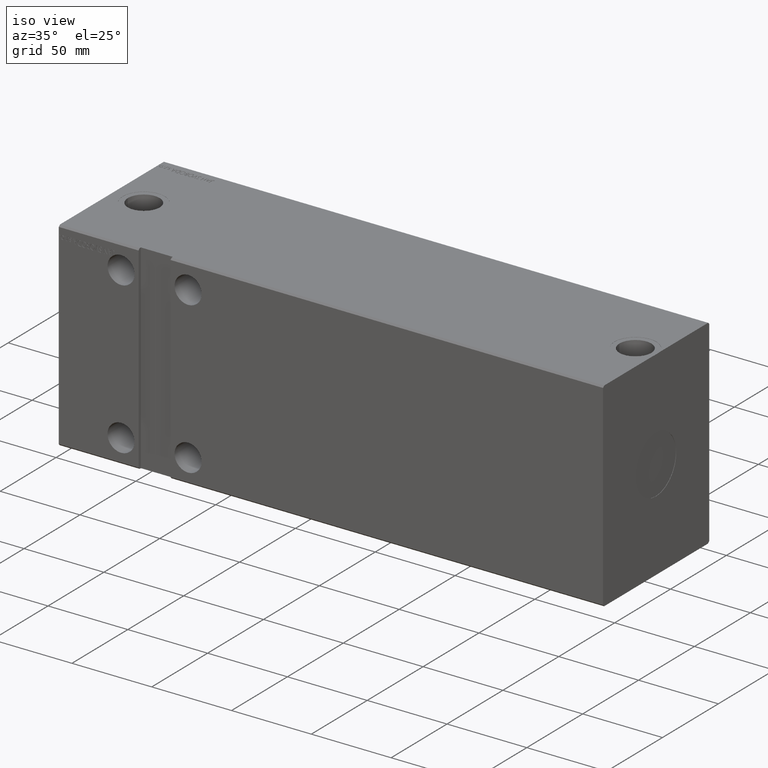
[diagram: clean part render]
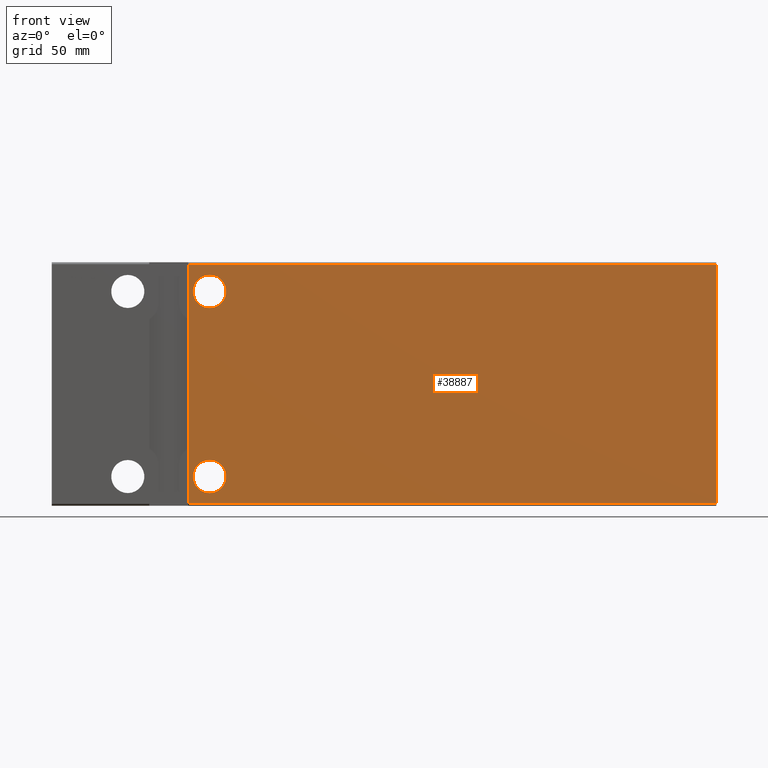
[diagram: tour spotlight — one face highlighted and labeled with its STEP entity id]
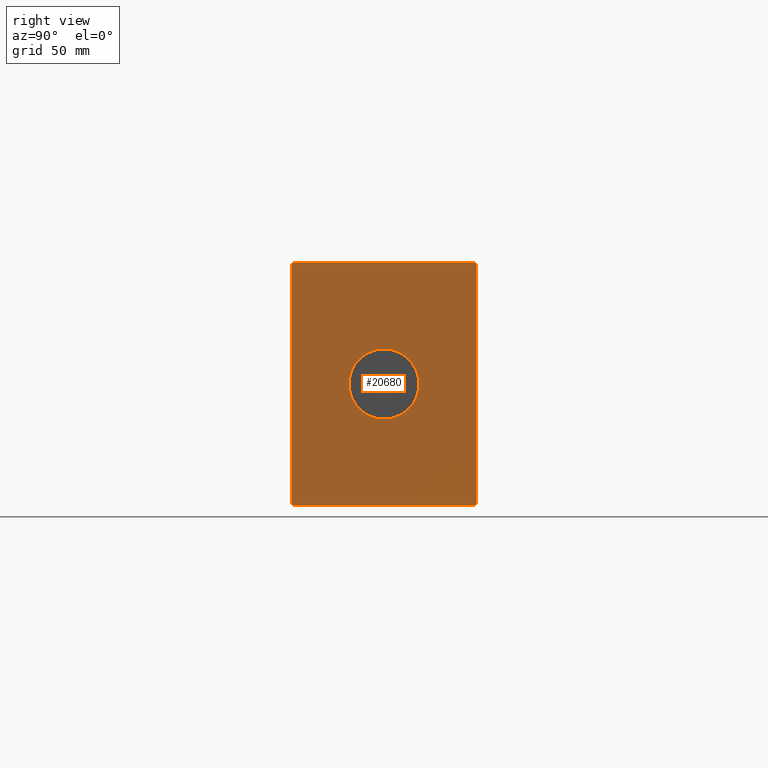
[diagram: tour spotlight — one face highlighted and labeled with its STEP entity id]
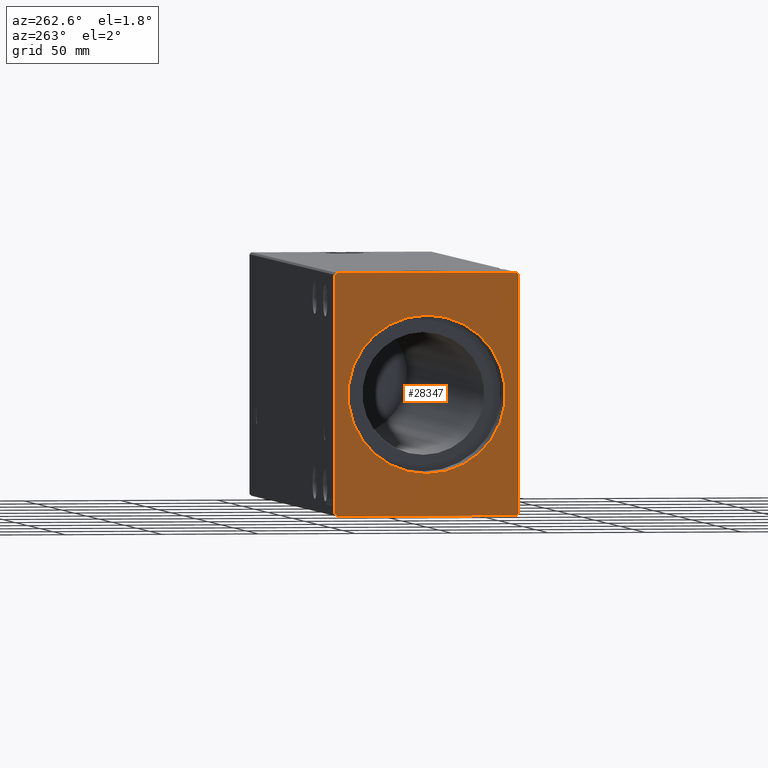
[diagram: tour spotlight — one face highlighted and labeled with its STEP entity id]
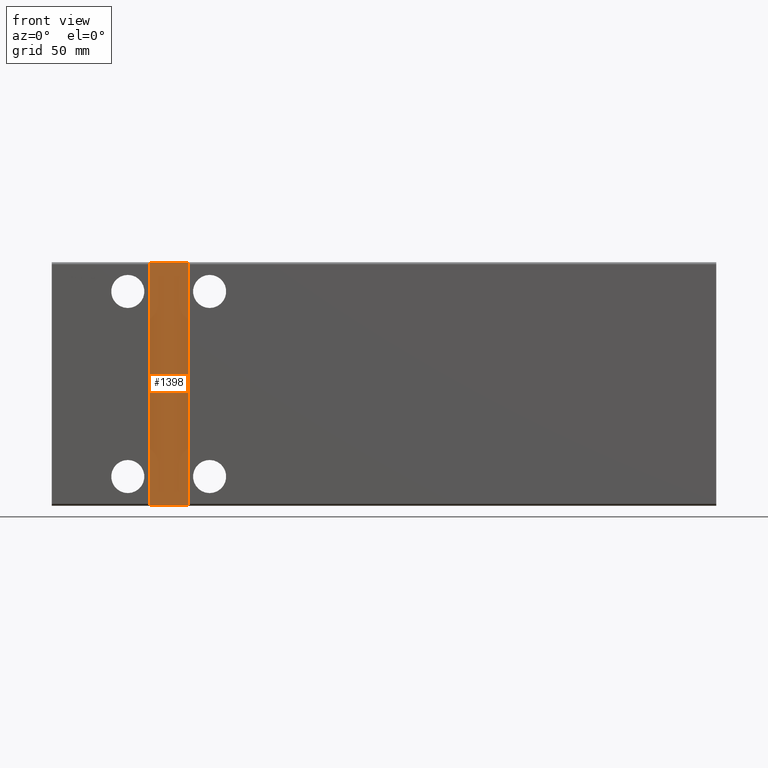
[diagram: tour spotlight — one face highlighted and labeled with its STEP entity id]
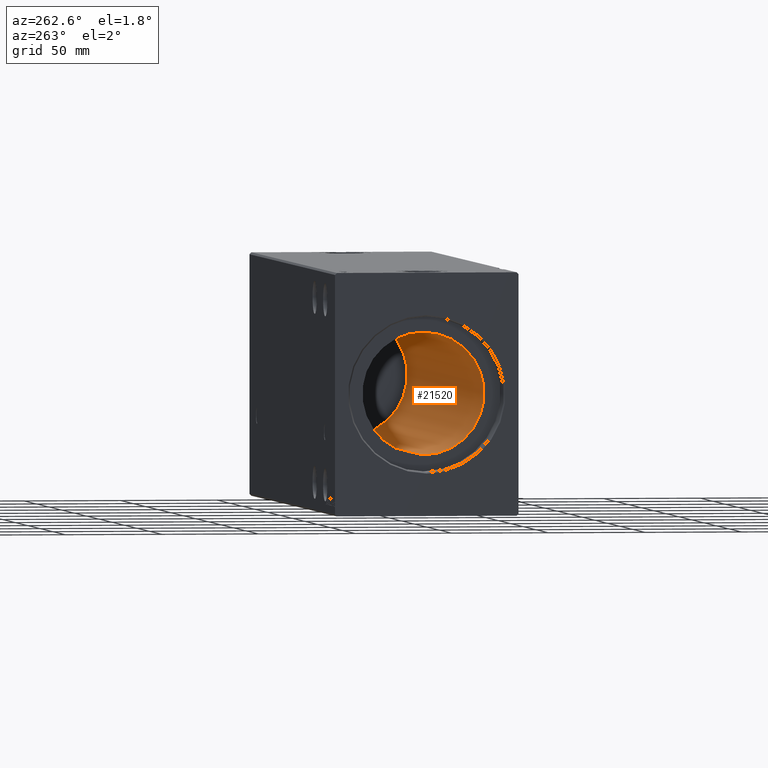
[diagram: tour spotlight — one face highlighted and labeled with its STEP entity id]
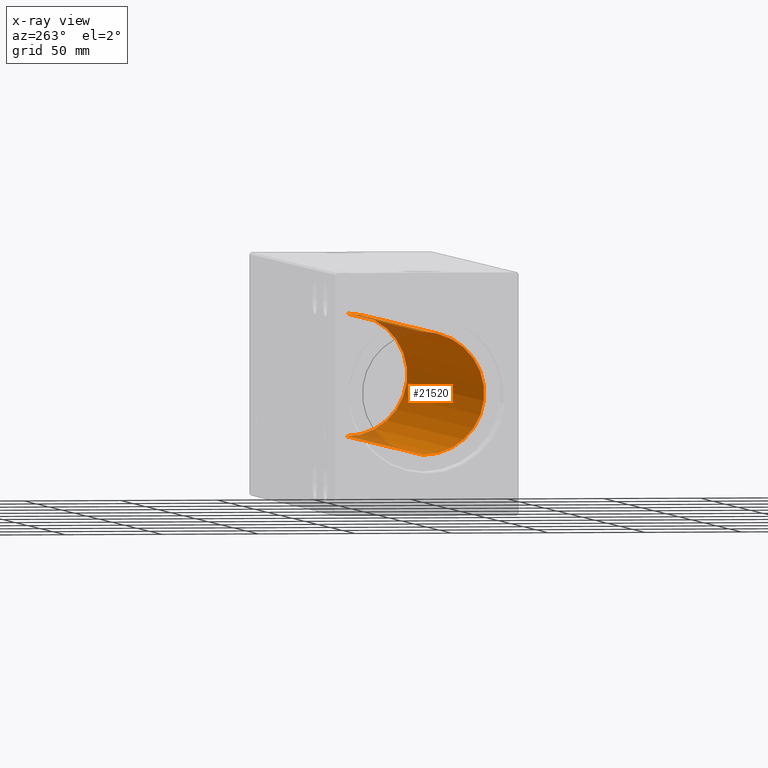
[diagram: x-ray of the same camera — body ghosted, this tour face saturated]
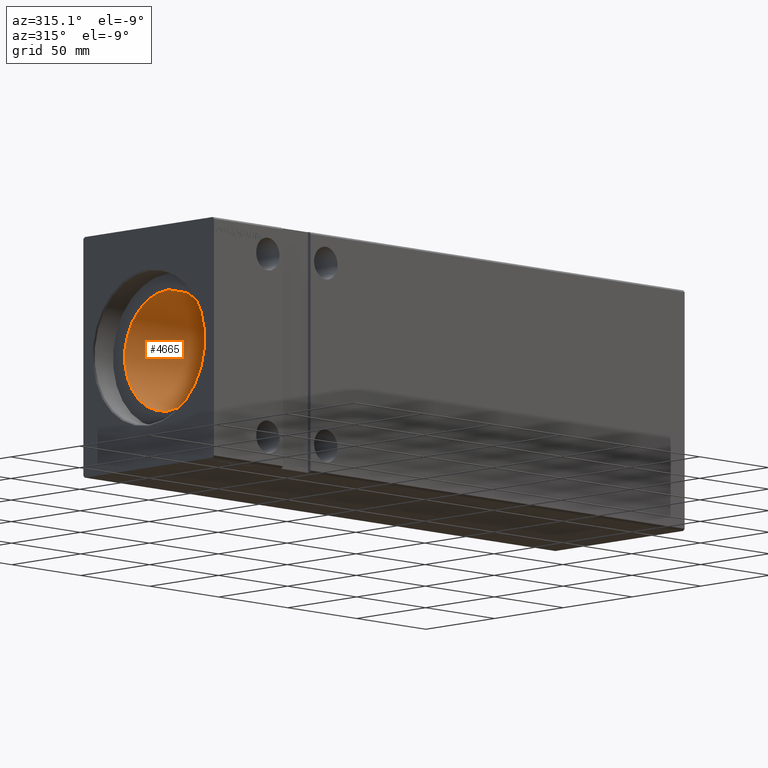
[diagram: tour spotlight — one face highlighted and labeled with its STEP entity id]
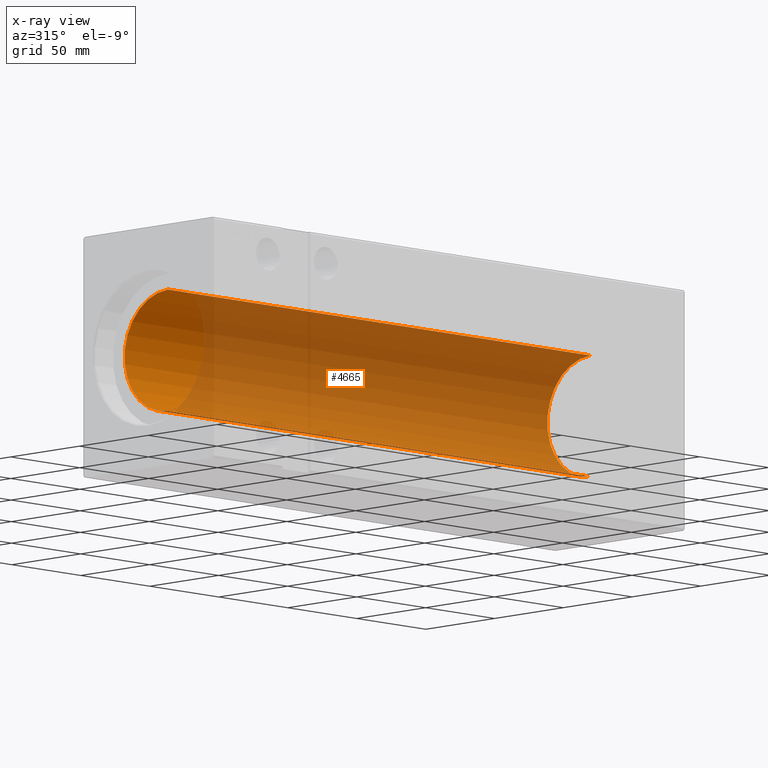
[diagram: x-ray of the same camera — body ghosted, this tour face saturated]
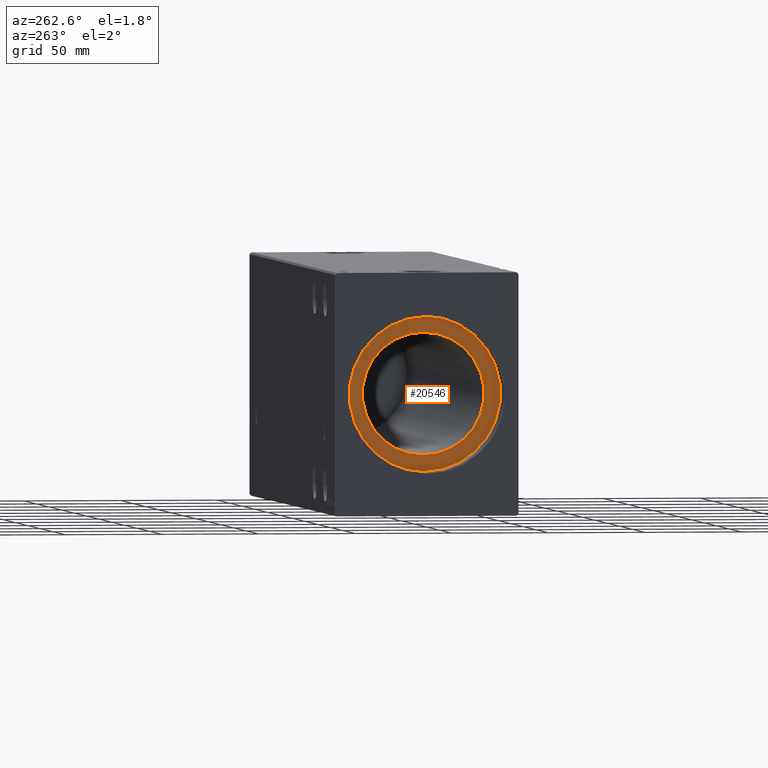
[diagram: tour spotlight — one face highlighted and labeled with its STEP entity id]
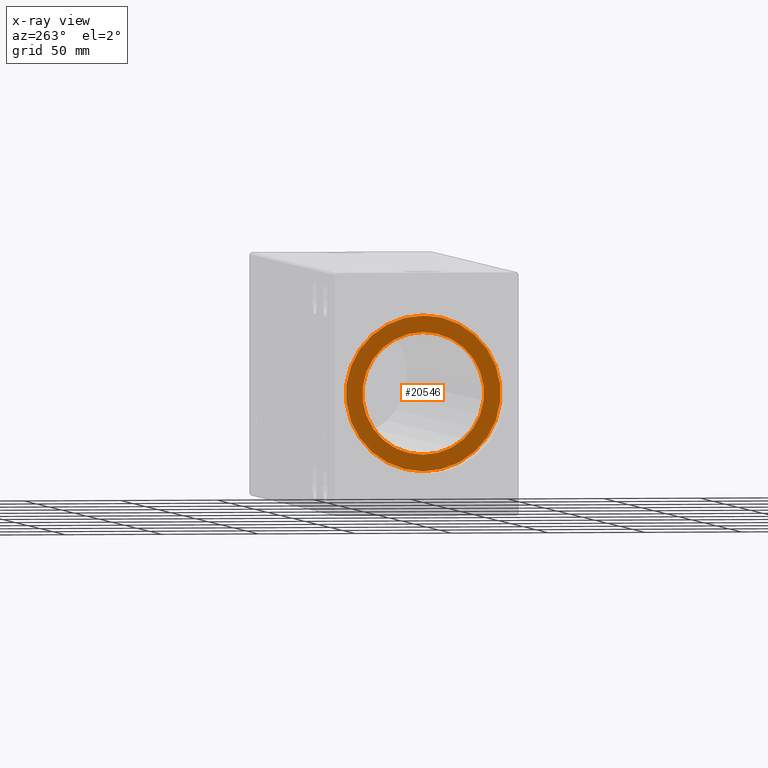
[diagram: x-ray of the same camera — body ghosted, this tour face saturated]
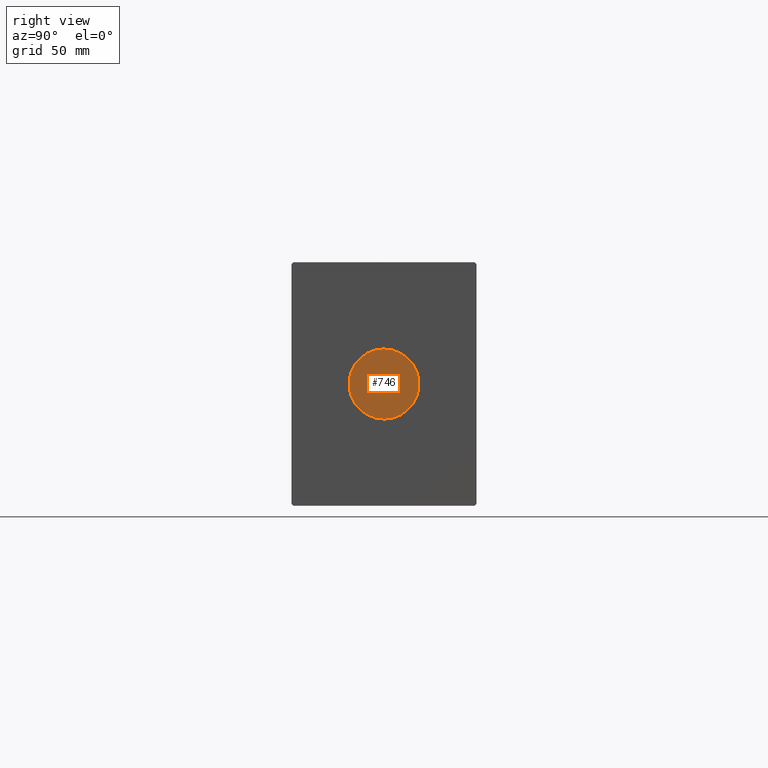
[diagram: tour spotlight — one face highlighted and labeled with its STEP entity id]
A machine part: a face-by-face anatomy tour. The part has 804 B-rep faces; the first image is the clean iso view, then the 8 largest visible faces are spotlighted one at a time (largest first), each with its STEP entity span.

Face 1 — front view, entity #38887. In plain terms, the highlighted planar face has unit normal (-0, 1, 0).
Definition (entity closure, byte-faithful):
#152 = EDGE_CURVE ( 'NONE', #23132, #13688, #6688, .T. ) ;
#255 = FACE_BOUND ( 'NONE', #15461, .T. ) ;
#394 = DIRECTION ( 'NONE',  ( 0.000000000000000000, 0.000000000000000000, 1.000000000000000000 ) ) ;
#982 = ORIENTED_EDGE ( 'NONE', *, *, #15094, .T. ) ;
#1041 = CIRCLE ( 'NONE', #30886, 8.500000000000000000 ) ;
#1151 = CARTESIAN_POINT ( 'NONE',  ( 341.0000000000000000, -47.49999999999999289, -61.50000000000001421 ) ) ;
#1300 = EDGE_CURVE ( 'NONE', #8858, #40564, #16434, .T. ) ;
#2521 = ORIENTED_EDGE ( 'NONE', *, *, #12086, .T. ) ;
#3158 = DIRECTION ( 'NONE',  ( 0.000000000000000000, -1.000000000000000000, -1.692413147294446463E-16 ) ) ;
#3230 = FACE_OUTER_BOUND ( 'NONE', #33255, .T. ) ;
#4709 = CARTESIAN_POINT ( 'NONE',  ( 70.00000000000000000, -47.50000000000000000, 61.49999999999999289 ) ) ;
#6688 = CIRCLE ( 'NONE', #35156, 8.500000000000000000 ) ;
#7129 = CARTESIAN_POINT ( 'NONE',  ( 341.0000000000000000, -47.50000000000001421, 61.49999999999997868 ) ) ;
#7287 = CARTESIAN_POINT ( 'NONE',  ( 81.00000000000001421, -47.50000000000000000, -47.50000000000000711 ) ) ;
#7400 = CARTESIAN_POINT ( 'NONE',  ( 341.0000000000000000, -47.50000000000001421, 61.49999999999997868 ) ) ;
#7740 = AXIS2_PLACEMENT_3D ( 'NONE', #15566, #34493, #15771 ) ;
#8858 = VERTEX_POINT ( 'NONE', #11055 ) ;
#9392 = PLANE ( 'NONE',  #33820 ) ;
#10447 = DIRECTION ( 'NONE',  ( 0.000000000000000000, 0.000000000000000000, 1.000000000000000000 ) ) ;
#11055 = CARTESIAN_POINT ( 'NONE',  ( 70.00000000000002842, -47.50000000000000000, -61.50000000000002132 ) ) ;
#11822 = VERTEX_POINT ( 'NONE', #7129 ) ;
#12086 = EDGE_CURVE ( 'NONE', #40940, #20087, #31578, .T. ) ;
#12287 = CARTESIAN_POINT ( 'NONE',  ( 81.00000000000000000, -47.50000000000001421, 55.99999999999999289 ) ) ;
#12350 = EDGE_CURVE ( 'NONE', #13688, #23132, #1041, .T. ) ;
#12559 = CARTESIAN_POINT ( 'NONE',  ( 341.0000000000000000, -47.50000000000001421, 61.49999999999997868 ) ) ;
#12985 = EDGE_CURVE ( 'NONE', #11822, #34972, #17591, .T. ) ;
#13688 = VERTEX_POINT ( 'NONE', #12287 ) ;
#13848 = DIRECTION ( 'NONE',  ( -2.220446049250313081E-16, -0.000000000000000000, 1.000000000000000000 ) ) ;
#14941 = DIRECTION ( 'NONE',  ( -1.000000000000000000, -0.000000000000000000, -0.000000000000000000 ) ) ;
#15011 = EDGE_CURVE ( 'NONE', #34972, #8858, #30258, .T. ) ;
#15094 = EDGE_CURVE ( 'NONE', #20087, #40940, #30132, .T. ) ;
#15384 = CARTESIAN_POINT ( 'NONE',  ( 81.00000000000001421, -47.50000000000000000, -56.00000000000001421 ) ) ;
#15461 = EDGE_LOOP ( 'NONE', ( #982, #2521 ) ) ;
#15566 = CARTESIAN_POINT ( 'NONE',  ( 81.00000000000001421, -47.50000000000000000, -47.50000000000000711 ) ) ;
#15771 = DIRECTION ( 'NONE',  ( 0.000000000000000000, 0.000000000000000000, 1.000000000000000000 ) ) ;
#16434 = LINE ( 'NONE', #38947, #35920 ) ;
#17591 = LINE ( 'NONE', #7400, #18024 ) ;
#18024 = VECTOR ( 'NONE', #39685, 1000.000000000000000 ) ;
#19303 = CARTESIAN_POINT ( 'NONE',  ( 81.00000000000000000, -47.50000000000001421, 47.49999999999999289 ) ) ;
#19417 = VECTOR ( 'NONE', #14941, 1000.000000000000000 ) ;
#19878 = ORIENTED_EDGE ( 'NONE', *, *, #12985, .F. ) ;
#20033 = AXIS2_PLACEMENT_3D ( 'NONE', #7287, #37387, #10447 ) ;
#20087 = VERTEX_POINT ( 'NONE', #15384 ) ;
#20599 = CARTESIAN_POINT ( 'NONE',  ( 81.00000000000001421, -47.50000000000000000, -39.00000000000000000 ) ) ;
#21191 = DIRECTION ( 'NONE',  ( 0.000000000000000000, -1.000000000000000000, -1.692413147294446463E-16 ) ) ;
#22360 = DIRECTION ( 'NONE',  ( 0.000000000000000000, -1.692413147294446463E-16, 1.000000000000000000 ) ) ;
#22437 = ORIENTED_EDGE ( 'NONE', *, *, #152, .F. ) ;
#22724 = VECTOR ( 'NONE', #35797, 1000.000000000000000 ) ;
#22837 = LINE ( 'NONE', #31769, #22724 ) ;
#23132 = VERTEX_POINT ( 'NONE', #38142 ) ;
#23146 = EDGE_CURVE ( 'NONE', #11822, #40564, #22837, .T. ) ;
#23309 = ORIENTED_EDGE ( 'NONE', *, *, #23146, .T. ) ;
#23520 = ORIENTED_EDGE ( 'NONE', *, *, #12350, .F. ) ;
#24631 = EDGE_LOOP ( 'NONE', ( #22437, #23520 ) ) ;
#25979 = ORIENTED_EDGE ( 'NONE', *, *, #15011, .F. ) ;
#30132 = CIRCLE ( 'NONE', #7740, 8.500000000000007105 ) ;
#30258 = LINE ( 'NONE', #1151, #19417 ) ;
#30748 = CARTESIAN_POINT ( 'NONE',  ( 81.00000000000000000, -47.50000000000001421, 47.49999999999999289 ) ) ;
#30886 = AXIS2_PLACEMENT_3D ( 'NONE', #19303, #3158, #394 ) ;
#31373 = DIRECTION ( 'NONE',  ( 0.000000000000000000, 0.000000000000000000, 1.000000000000000000 ) ) ;
#31578 = CIRCLE ( 'NONE', #20033, 8.500000000000007105 ) ;
#31769 = CARTESIAN_POINT ( 'NONE',  ( 341.0000000000000000, -47.50000000000001421, 61.49999999999997868 ) ) ;
#32008 = CARTESIAN_POINT ( 'NONE',  ( 341.0000000000000000, -47.49999999999999289, -61.50000000000001421 ) ) ;
#33255 = EDGE_LOOP ( 'NONE', ( #23309, #33914, #25979, #19878 ) ) ;
#33820 = AXIS2_PLACEMENT_3D ( 'NONE', #12559, #39345, #22360 ) ;
#33914 = ORIENTED_EDGE ( 'NONE', *, *, #1300, .F. ) ;
#34493 = DIRECTION ( 'NONE',  ( -0.000000000000000000, 1.000000000000000000, 1.692413147294446463E-16 ) ) ;
#34972 = VERTEX_POINT ( 'NONE', #32008 ) ;
#35156 = AXIS2_PLACEMENT_3D ( 'NONE', #30748, #21191, #31373 ) ;
#35797 = DIRECTION ( 'NONE',  ( -1.000000000000000000, -0.000000000000000000, -0.000000000000000000 ) ) ;
#35920 = VECTOR ( 'NONE', #13848, 1000.000000000000000 ) ;
#37387 = DIRECTION ( 'NONE',  ( -0.000000000000000000, 1.000000000000000000, 1.692413147294446463E-16 ) ) ;
#38142 = CARTESIAN_POINT ( 'NONE',  ( 81.00000000000000000, -47.50000000000001421, 38.99999999999999289 ) ) ;
#38711 = FACE_BOUND ( 'NONE', #24631, .T. ) ;
#38887 = ADVANCED_FACE ( 'NONE', ( #255, #3230, #38711 ), #9392, .F. ) ;
#38947 = CARTESIAN_POINT ( 'NONE',  ( 70.00000000000000000, -47.50000000000000000, 62.49999999999997868 ) ) ;
#39345 = DIRECTION ( 'NONE',  ( -0.000000000000000000, 1.000000000000000000, 1.692413147294446463E-16 ) ) ;
#39685 = DIRECTION ( 'NONE',  ( 0.000000000000000000, 1.692413147294445970E-16, -1.000000000000000000 ) ) ;
#40564 = VERTEX_POINT ( 'NONE', #4709 ) ;
#40940 = VERTEX_POINT ( 'NONE', #20599 ) ;

Face 2 — right view, entity #20680. In plain terms, the highlighted planar face has unit normal (1, 0, 0).
Definition (entity closure, byte-faithful):
#83 = LINE ( 'NONE', #38533, #25455 ) ;
#215 = CARTESIAN_POINT ( 'NONE',  ( 341.0000000000000000, 0.000000000000000000, -18.00000000000000000 ) ) ;
#292 = CARTESIAN_POINT ( 'NONE',  ( 341.0000000000000000, 2.561737691489758273, 62.39999999999998437 ) ) ;
#1033 = EDGE_CURVE ( 'NONE', #10339, #13670, #26437, .T. ) ;
#1205 = EDGE_CURVE ( 'NONE', #30323, #20260, #2843, .T. ) ;
#1244 = DIRECTION ( 'NONE',  ( 0.000000000000000000, -0.7071067811865474617, -0.7071067811865474617 ) ) ;
#1275 = CARTESIAN_POINT ( 'NONE',  ( 341.0000000000000000, -2.561737691489767155, 62.49999999999998579 ) ) ;
#1350 = VECTOR ( 'NONE', #3784, 999.9999999999998863 ) ;
#2047 = CARTESIAN_POINT ( 'NONE',  ( 341.0000000000000000, 46.50000000000000000, 62.49999999999998579 ) ) ;
#2088 = LINE ( 'NONE', #41584, #17478 ) ;
#2561 = LINE ( 'NONE', #15511, #21638 ) ;
#2843 = LINE ( 'NONE', #41512, #33189 ) ;
#2916 = CARTESIAN_POINT ( 'NONE',  ( 341.0000000000000000, 46.50000000000000000, -62.50000000000000000 ) ) ;
#3124 = EDGE_CURVE ( 'NONE', #33411, #18713, #30118, .T. ) ;
#3784 = DIRECTION ( 'NONE',  ( 0.000000000000000000, 0.7071067811865574537, 0.7071067811865376918 ) ) ;
#3790 = DIRECTION ( 'NONE',  ( 1.000000000000000000, 0.000000000000000000, 0.000000000000000000 ) ) ;
#4186 = ORIENTED_EDGE ( 'NONE', *, *, #1205, .F. ) ;
#4446 = DIRECTION ( 'NONE',  ( 0.000000000000000000, 0.000000000000000000, -1.000000000000000000 ) ) ;
#4626 = FACE_OUTER_BOUND ( 'NONE', #21867, .T. ) ;
#5128 = CARTESIAN_POINT ( 'NONE',  ( 341.0000000000000000, 47.50000000000000000, 61.49999999999998579 ) ) ;
#5189 = ORIENTED_EDGE ( 'NONE', *, *, #35886, .T. ) ;
#6780 = EDGE_CURVE ( 'NONE', #34972, #23673, #2088, .T. ) ;
#6825 = LINE ( 'NONE', #32729, #11140 ) ;
#6989 = CARTESIAN_POINT ( 'NONE',  ( 341.0000000000000000, -46.50000000000000000, -62.50000000000001421 ) ) ;
#7129 = CARTESIAN_POINT ( 'NONE',  ( 341.0000000000000000, -47.50000000000001421, 61.49999999999997868 ) ) ;
#7400 = CARTESIAN_POINT ( 'NONE',  ( 341.0000000000000000, -47.50000000000001421, 61.49999999999997868 ) ) ;
#7417 = VECTOR ( 'NONE', #1244, 1000.000000000000114 ) ;
#8445 = DIRECTION ( 'NONE',  ( 0.000000000000000000, 0.000000000000000000, -1.000000000000000000 ) ) ;
#9327 = CARTESIAN_POINT ( 'NONE',  ( 341.0000000000000000, 2.204364238465235428E-15, 18.00000000000000000 ) ) ;
#9878 = ORIENTED_EDGE ( 'NONE', *, *, #10017, .T. ) ;
#9909 = VERTEX_POINT ( 'NONE', #18087 ) ;
#10017 = EDGE_CURVE ( 'NONE', #40407, #20260, #27030, .T. ) ;
#10339 = VERTEX_POINT ( 'NONE', #215 ) ;
#10520 = AXIS2_PLACEMENT_3D ( 'NONE', #11609, #37541, #8445 ) ;
#10854 = CARTESIAN_POINT ( 'NONE',  ( 341.0000000000000000, 46.50000000000000000, 62.49999999999998579 ) ) ;
#11089 = EDGE_CURVE ( 'NONE', #17684, #9909, #6825, .T. ) ;
#11140 = VECTOR ( 'NONE', #29125, 1000.000000000000000 ) ;
#11566 = DIRECTION ( 'NONE',  ( 1.000000000000000000, 0.000000000000000000, 0.000000000000000000 ) ) ;
#11609 = CARTESIAN_POINT ( 'NONE',  ( 341.0000000000000000, 0.000000000000000000, 0.000000000000000000 ) ) ;
#11822 = VERTEX_POINT ( 'NONE', #7129 ) ;
#11895 = CARTESIAN_POINT ( 'NONE',  ( 341.0000000000000000, -46.50000000000000000, -62.50000000000001421 ) ) ;
#11934 = DIRECTION ( 'NONE',  ( 0.000000000000000000, -1.128275431529630729E-16, 1.000000000000000000 ) ) ;
#12985 = EDGE_CURVE ( 'NONE', #11822, #34972, #17591, .T. ) ;
#13400 = AXIS2_PLACEMENT_3D ( 'NONE', #15168, #11566, #27950 ) ;
#13670 = VERTEX_POINT ( 'NONE', #9327 ) ;
#13742 = CARTESIAN_POINT ( 'NONE',  ( 341.0000000000000000, 46.50000000000000000, -62.50000000000000000 ) ) ;
#15168 = CARTESIAN_POINT ( 'NONE',  ( 341.0000000000000000, 0.000000000000000000, 0.000000000000000000 ) ) ;
#15511 = CARTESIAN_POINT ( 'NONE',  ( 341.0000000000000000, 47.50000000000000000, 61.49999999999998579 ) ) ;
#16085 = ORIENTED_EDGE ( 'NONE', *, *, #40784, .T. ) ;
#16558 = CARTESIAN_POINT ( 'NONE',  ( 341.0000000000000000, -2.561737691489767155, 62.39999999999998437 ) ) ;
#17287 = VECTOR ( 'NONE', #4446, 1000.000000000000000 ) ;
#17478 = VECTOR ( 'NONE', #25023, 1000.000000000000114 ) ;
#17591 = LINE ( 'NONE', #7400, #18024 ) ;
#17684 = VERTEX_POINT ( 'NONE', #1275 ) ;
#18024 = VECTOR ( 'NONE', #39685, 1000.000000000000000 ) ;
#18087 = CARTESIAN_POINT ( 'NONE',  ( 341.0000000000000000, -46.50000000000001421, 62.49999999999997868 ) ) ;
#18713 = VERTEX_POINT ( 'NONE', #22286 ) ;
#18746 = LINE ( 'NONE', #34478, #26124 ) ;
#18996 = EDGE_CURVE ( 'NONE', #30323, #39453, #83, .T. ) ;
#19395 = ORIENTED_EDGE ( 'NONE', *, *, #22315, .T. ) ;
#19558 = ORIENTED_EDGE ( 'NONE', *, *, #3124, .T. ) ;
#20260 = VERTEX_POINT ( 'NONE', #41939 ) ;
#20583 = EDGE_CURVE ( 'NONE', #23673, #33411, #39059, .T. ) ;
#20680 = ADVANCED_FACE ( 'NONE', ( #27792, #4626 ), #40315, .T. ) ;
#21638 = VECTOR ( 'NONE', #28482, 1000.000000000000114 ) ;
#21867 = EDGE_LOOP ( 'NONE', ( #4186, #23050, #40683, #26447, #5189, #27711, #34661, #37769, #19558, #19395, #16085, #9878 ) ) ;
#22286 = CARTESIAN_POINT ( 'NONE',  ( 341.0000000000000000, 47.50000000000001421, -61.50000000000001421 ) ) ;
#22315 = EDGE_CURVE ( 'NONE', #18713, #27771, #18746, .T. ) ;
#23001 = EDGE_CURVE ( 'NONE', #17684, #39453, #32719, .T. ) ;
#23050 = ORIENTED_EDGE ( 'NONE', *, *, #18996, .T. ) ;
#23673 = VERTEX_POINT ( 'NONE', #11895 ) ;
#23838 = DIRECTION ( 'NONE',  ( 0.000000000000000000, -1.000000000000000000, -7.461176240760460157E-17 ) ) ;
#24028 = VECTOR ( 'NONE', #23838, 1000.000000000000000 ) ;
#25023 = DIRECTION ( 'NONE',  ( 0.000000000000000000, 0.7071067811865451302, -0.7071067811865500152 ) ) ;
#25359 = DIRECTION ( 'NONE',  ( 0.000000000000000000, -1.000000000000000000, 0.000000000000000000 ) ) ;
#25455 = VECTOR ( 'NONE', #25359, 1000.000000000000000 ) ;
#25694 = CARTESIAN_POINT ( 'NONE',  ( 341.0000000000000000, 0.000000000000000000, 0.000000000000000000 ) ) ;
#26124 = VECTOR ( 'NONE', #11934, 1000.000000000000000 ) ;
#26437 = CIRCLE ( 'NONE', #32524, 18.00000000000000000 ) ;
#26447 = ORIENTED_EDGE ( 'NONE', *, *, #11089, .T. ) ;
#26954 = CARTESIAN_POINT ( 'NONE',  ( 341.0000000000000000, -46.50000000000001421, 62.49999999999997868 ) ) ;
#26982 = ORIENTED_EDGE ( 'NONE', *, *, #30884, .F. ) ;
#27030 = LINE ( 'NONE', #10854, #24028 ) ;
#27711 = ORIENTED_EDGE ( 'NONE', *, *, #12985, .T. ) ;
#27771 = VERTEX_POINT ( 'NONE', #5128 ) ;
#27792 = FACE_BOUND ( 'NONE', #39827, .T. ) ;
#27950 = DIRECTION ( 'NONE',  ( 0.000000000000000000, 0.000000000000000000, -1.000000000000000000 ) ) ;
#28482 = DIRECTION ( 'NONE',  ( 0.000000000000000000, -0.7071067811865474617, 0.7071067811865474617 ) ) ;
#28855 = VECTOR ( 'NONE', #29295, 1000.000000000000000 ) ;
#29090 = DIRECTION ( 'NONE',  ( 0.000000000000000000, 0.000000000000000000, -1.000000000000000000 ) ) ;
#29125 = DIRECTION ( 'NONE',  ( 0.000000000000000000, -1.000000000000000000, -7.461176240760460157E-17 ) ) ;
#29295 = DIRECTION ( 'NONE',  ( 0.000000000000000000, 1.000000000000000000, 1.492235248152092278E-16 ) ) ;
#30118 = LINE ( 'NONE', #13742, #1350 ) ;
#30323 = VERTEX_POINT ( 'NONE', #292 ) ;
#30884 = EDGE_CURVE ( 'NONE', #13670, #10339, #31726, .T. ) ;
#30943 = ORIENTED_EDGE ( 'NONE', *, *, #1033, .F. ) ;
#31531 = DIRECTION ( 'NONE',  ( -0.000000000000000000, -0.000000000000000000, 1.000000000000000000 ) ) ;
#31726 = CIRCLE ( 'NONE', #13400, 18.00000000000000000 ) ;
#32008 = CARTESIAN_POINT ( 'NONE',  ( 341.0000000000000000, -47.49999999999999289, -61.50000000000001421 ) ) ;
#32524 = AXIS2_PLACEMENT_3D ( 'NONE', #25694, #3790, #29090 ) ;
#32719 = LINE ( 'NONE', #16558, #17287 ) ;
#32729 = CARTESIAN_POINT ( 'NONE',  ( 341.0000000000000000, 46.50000000000000000, 62.49999999999998579 ) ) ;
#33189 = VECTOR ( 'NONE', #31531, 1000.000000000000000 ) ;
#33411 = VERTEX_POINT ( 'NONE', #2916 ) ;
#34478 = CARTESIAN_POINT ( 'NONE',  ( 341.0000000000000000, 47.50000000000001421, -61.50000000000001421 ) ) ;
#34661 = ORIENTED_EDGE ( 'NONE', *, *, #6780, .T. ) ;
#34972 = VERTEX_POINT ( 'NONE', #32008 ) ;
#35886 = EDGE_CURVE ( 'NONE', #9909, #11822, #40327, .T. ) ;
#36826 = CARTESIAN_POINT ( 'NONE',  ( 341.0000000000000000, -2.561737691489767155, 62.39999999999998437 ) ) ;
#37541 = DIRECTION ( 'NONE',  ( 1.000000000000000000, 0.000000000000000000, 0.000000000000000000 ) ) ;
#37769 = ORIENTED_EDGE ( 'NONE', *, *, #20583, .T. ) ;
#38533 = CARTESIAN_POINT ( 'NONE',  ( 341.0000000000000000, 0.000000000000000000, 62.39999999999998437 ) ) ;
#39059 = LINE ( 'NONE', #6989, #28855 ) ;
#39453 = VERTEX_POINT ( 'NONE', #36826 ) ;
#39685 = DIRECTION ( 'NONE',  ( 0.000000000000000000, 1.692413147294445970E-16, -1.000000000000000000 ) ) ;
#39827 = EDGE_LOOP ( 'NONE', ( #30943, #26982 ) ) ;
#40315 = PLANE ( 'NONE',  #10520 ) ;
#40327 = LINE ( 'NONE', #26954, #7417 ) ;
#40407 = VERTEX_POINT ( 'NONE', #2047 ) ;
#40683 = ORIENTED_EDGE ( 'NONE', *, *, #23001, .F. ) ;
#40784 = EDGE_CURVE ( 'NONE', #27771, #40407, #2561, .T. ) ;
#41512 = CARTESIAN_POINT ( 'NONE',  ( 341.0000000000000000, 2.561737691489758273, 62.39999999999998437 ) ) ;
#41584 = CARTESIAN_POINT ( 'NONE',  ( 341.0000000000000000, -47.49999999999999289, -61.50000000000001421 ) ) ;
#41939 = CARTESIAN_POINT ( 'NONE',  ( 341.0000000000000000, 2.561737691489758273, 62.49999999999998579 ) ) ;

Face 3 — auxiliary view, entity #28347. In plain terms, the highlighted planar face has unit normal (1, 0, 0).
Definition (entity closure, byte-faithful):
#1029 = LINE ( 'NONE', #4012, #31703 ) ;
#1447 = CARTESIAN_POINT ( 'NONE',  ( 0.000000000000000000, -46.50000000000001421, 62.49999999999997868 ) ) ;
#1761 = LINE ( 'NONE', #5161, #3004 ) ;
#1798 = DIRECTION ( 'NONE',  ( 1.000000000000000000, 0.000000000000000000, 0.000000000000000000 ) ) ;
#2852 = DIRECTION ( 'NONE',  ( 0.000000000000000000, -1.000000000000000000, -7.461176240760460157E-17 ) ) ;
#3004 = VECTOR ( 'NONE', #21935, 1000.000000000000000 ) ;
#3300 = CARTESIAN_POINT ( 'NONE',  ( 0.000000000000000000, 0.000000000000000000, 40.69999999999990337 ) ) ;
#4012 = CARTESIAN_POINT ( 'NONE',  ( 0.000000000000000000, -46.50000000000000000, -62.50000000000001421 ) ) ;
#4028 = DIRECTION ( 'NONE',  ( 0.000000000000000000, -1.128275431529630729E-16, 1.000000000000000000 ) ) ;
#4137 = EDGE_LOOP ( 'NONE', ( #10960, #8229 ) ) ;
#4200 = VERTEX_POINT ( 'NONE', #6103 ) ;
#4249 = VERTEX_POINT ( 'NONE', #25423 ) ;
#4497 = VERTEX_POINT ( 'NONE', #28563 ) ;
#4503 = DIRECTION ( 'NONE',  ( 0.000000000000000000, -0.7071067811865474617, 0.7071067811865474617 ) ) ;
#4619 = VERTEX_POINT ( 'NONE', #14897 ) ;
#5161 = CARTESIAN_POINT ( 'NONE',  ( 0.000000000000000000, -47.50000000000001421, 61.49999999999997868 ) ) ;
#5351 = FACE_OUTER_BOUND ( 'NONE', #22919, .T. ) ;
#5720 = CARTESIAN_POINT ( 'NONE',  ( 0.000000000000000000, 46.50000000000000000, -62.50000000000000000 ) ) ;
#6103 = CARTESIAN_POINT ( 'NONE',  ( 0.000000000000000000, -47.50000000000001421, 61.49999999999997868 ) ) ;
#6229 = ORIENTED_EDGE ( 'NONE', *, *, #40022, .F. ) ;
#6575 = AXIS2_PLACEMENT_3D ( 'NONE', #34662, #8543, #14471 ) ;
#7089 = VECTOR ( 'NONE', #4503, 1000.000000000000114 ) ;
#7343 = CARTESIAN_POINT ( 'NONE',  ( 0.000000000000000000, -47.49999999999999289, -61.50000000000001421 ) ) ;
#7843 = VECTOR ( 'NONE', #27362, 1000.000000000000114 ) ;
#8077 = ORIENTED_EDGE ( 'NONE', *, *, #21507, .F. ) ;
#8229 = ORIENTED_EDGE ( 'NONE', *, *, #11874, .T. ) ;
#8543 = DIRECTION ( 'NONE',  ( 1.000000000000000000, 0.000000000000000000, 0.000000000000000000 ) ) ;
#9105 = DIRECTION ( 'NONE',  ( 0.000000000000000000, 0.7071067811865574537, 0.7071067811865376918 ) ) ;
#10363 = LINE ( 'NONE', #1447, #7843 ) ;
#10960 = ORIENTED_EDGE ( 'NONE', *, *, #40649, .T. ) ;
#11874 = EDGE_CURVE ( 'NONE', #4619, #28065, #41067, .T. ) ;
#11935 = EDGE_CURVE ( 'NONE', #34340, #12574, #31944, .T. ) ;
#12574 = VERTEX_POINT ( 'NONE', #13464 ) ;
#12716 = EDGE_CURVE ( 'NONE', #36663, #14574, #37802, .T. ) ;
#13464 = CARTESIAN_POINT ( 'NONE',  ( 0.000000000000000000, -46.50000000000000000, -62.50000000000001421 ) ) ;
#14036 = DIRECTION ( 'NONE',  ( 0.000000000000000000, 0.000000000000000000, -1.000000000000000000 ) ) ;
#14471 = DIRECTION ( 'NONE',  ( 0.000000000000000000, 0.000000000000000000, -1.000000000000000000 ) ) ;
#14574 = VERTEX_POINT ( 'NONE', #34590 ) ;
#14580 = AXIS2_PLACEMENT_3D ( 'NONE', #41085, #1798, #31521 ) ;
#14897 = CARTESIAN_POINT ( 'NONE',  ( 0.000000000000000000, 4.984312472529715481E-15, -40.69999999999990337 ) ) ;
#15199 = EDGE_CURVE ( 'NONE', #4249, #4497, #23841, .T. ) ;
#16187 = AXIS2_PLACEMENT_3D ( 'NONE', #17671, #30632, #14036 ) ;
#17671 = CARTESIAN_POINT ( 'NONE',  ( 0.000000000000000000, 0.000000000000000000, 0.000000000000000000 ) ) ;
#18691 = ORIENTED_EDGE ( 'NONE', *, *, #30612, .F. ) ;
#19188 = CARTESIAN_POINT ( 'NONE',  ( 0.000000000000000000, -47.49999999999999289, -61.50000000000001421 ) ) ;
#19673 = CARTESIAN_POINT ( 'NONE',  ( 0.000000000000000000, 46.50000000000000000, -62.50000000000000000 ) ) ;
#19688 = EDGE_CURVE ( 'NONE', #31349, #4200, #10363, .T. ) ;
#20246 = EDGE_CURVE ( 'NONE', #4497, #31349, #32161, .T. ) ;
#21396 = VECTOR ( 'NONE', #9105, 999.9999999999998863 ) ;
#21507 = EDGE_CURVE ( 'NONE', #4200, #34340, #1761, .T. ) ;
#21935 = DIRECTION ( 'NONE',  ( 0.000000000000000000, 1.692413147294445970E-16, -1.000000000000000000 ) ) ;
#22250 = CARTESIAN_POINT ( 'NONE',  ( 0.000000000000000000, -46.50000000000001421, 62.49999999999997868 ) ) ;
#22919 = EDGE_LOOP ( 'NONE', ( #35485, #6229, #40595, #18691, #40102, #8077, #30782, #35002 ) ) ;
#23841 = LINE ( 'NONE', #30845, #7089 ) ;
#24268 = PLANE ( 'NONE',  #6575 ) ;
#25423 = CARTESIAN_POINT ( 'NONE',  ( 0.000000000000000000, 47.50000000000000000, 61.49999999999998579 ) ) ;
#27362 = DIRECTION ( 'NONE',  ( 0.000000000000000000, -0.7071067811865474617, -0.7071067811865474617 ) ) ;
#27523 = VECTOR ( 'NONE', #2852, 1000.000000000000000 ) ;
#28065 = VERTEX_POINT ( 'NONE', #3300 ) ;
#28183 = VECTOR ( 'NONE', #29390, 1000.000000000000114 ) ;
#28290 = FACE_BOUND ( 'NONE', #4137, .T. ) ;
#28347 = ADVANCED_FACE ( 'NONE', ( #28290, #5351 ), #24268, .F. ) ;
#28563 = CARTESIAN_POINT ( 'NONE',  ( 0.000000000000000000, 46.50000000000000000, 62.49999999999998579 ) ) ;
#28564 = CARTESIAN_POINT ( 'NONE',  ( 0.000000000000000000, 46.50000000000000000, 62.49999999999998579 ) ) ;
#29390 = DIRECTION ( 'NONE',  ( 0.000000000000000000, 0.7071067811865451302, -0.7071067811865500152 ) ) ;
#30612 = EDGE_CURVE ( 'NONE', #12574, #36663, #1029, .T. ) ;
#30632 = DIRECTION ( 'NONE',  ( 1.000000000000000000, 0.000000000000000000, 0.000000000000000000 ) ) ;
#30782 = ORIENTED_EDGE ( 'NONE', *, *, #19688, .F. ) ;
#30845 = CARTESIAN_POINT ( 'NONE',  ( 0.000000000000000000, 47.50000000000000000, 61.49999999999998579 ) ) ;
#31349 = VERTEX_POINT ( 'NONE', #22250 ) ;
#31521 = DIRECTION ( 'NONE',  ( 0.000000000000000000, 0.000000000000000000, -1.000000000000000000 ) ) ;
#31703 = VECTOR ( 'NONE', #32905, 1000.000000000000000 ) ;
#31944 = LINE ( 'NONE', #19188, #28183 ) ;
#32161 = LINE ( 'NONE', #28564, #27523 ) ;
#32905 = DIRECTION ( 'NONE',  ( 0.000000000000000000, 1.000000000000000000, 1.492235248152092278E-16 ) ) ;
#33161 = VECTOR ( 'NONE', #4028, 1000.000000000000000 ) ;
#34340 = VERTEX_POINT ( 'NONE', #7343 ) ;
#34590 = CARTESIAN_POINT ( 'NONE',  ( 0.000000000000000000, 47.50000000000001421, -61.50000000000001421 ) ) ;
#34662 = CARTESIAN_POINT ( 'NONE',  ( 0.000000000000000000, 0.000000000000000000, 0.000000000000000000 ) ) ;
#35002 = ORIENTED_EDGE ( 'NONE', *, *, #20246, .F. ) ;
#35219 = CIRCLE ( 'NONE', #16187, 40.69999999999990337 ) ;
#35485 = ORIENTED_EDGE ( 'NONE', *, *, #15199, .F. ) ;
#36107 = LINE ( 'NONE', #40339, #33161 ) ;
#36663 = VERTEX_POINT ( 'NONE', #19673 ) ;
#37802 = LINE ( 'NONE', #5720, #21396 ) ;
#40022 = EDGE_CURVE ( 'NONE', #14574, #4249, #36107, .T. ) ;
#40102 = ORIENTED_EDGE ( 'NONE', *, *, #11935, .F. ) ;
#40339 = CARTESIAN_POINT ( 'NONE',  ( 0.000000000000000000, 47.50000000000001421, -61.50000000000001421 ) ) ;
#40595 = ORIENTED_EDGE ( 'NONE', *, *, #12716, .F. ) ;
#40649 = EDGE_CURVE ( 'NONE', #28065, #4619, #35219, .T. ) ;
#41067 = CIRCLE ( 'NONE', #14580, 40.69999999999990337 ) ;
#41085 = CARTESIAN_POINT ( 'NONE',  ( 0.000000000000000000, 0.000000000000000000, 0.000000000000000000 ) ) ;

Face 4 — front view, entity #1398. In plain terms, the highlighted planar face has unit normal (0, -1, 0).
Definition (entity closure, byte-faithful):
#314 = VECTOR ( 'NONE', #24119, 1000.000000000000000 ) ;
#1398 = ADVANCED_FACE ( 'NONE', ( #39377 ), #10672, .T. ) ;
#2246 = EDGE_CURVE ( 'NONE', #26309, #35242, #9879, .T. ) ;
#3937 = CARTESIAN_POINT ( 'NONE',  ( 70.00000000000000000, -45.50000000000000000, 62.49999999999997868 ) ) ;
#4247 = CARTESIAN_POINT ( 'NONE',  ( 49.99999999999998579, -45.50000000000000000, 62.49999999999997868 ) ) ;
#5350 = ORIENTED_EDGE ( 'NONE', *, *, #2246, .T. ) ;
#7540 = VERTEX_POINT ( 'NONE', #21013 ) ;
#8739 = ORIENTED_EDGE ( 'NONE', *, *, #23515, .T. ) ;
#9879 = LINE ( 'NONE', #3937, #36582 ) ;
#10459 = DIRECTION ( 'NONE',  ( 0.000000000000000000, -0.000000000000000000, -1.000000000000000000 ) ) ;
#10672 = PLANE ( 'NONE',  #15556 ) ;
#11130 = CARTESIAN_POINT ( 'NONE',  ( 49.99999999999998579, -45.50000000000000000, 62.49999999999997868 ) ) ;
#14458 = ORIENTED_EDGE ( 'NONE', *, *, #17817, .T. ) ;
#15556 = AXIS2_PLACEMENT_3D ( 'NONE', #22810, #26212, #10459 ) ;
#16470 = DIRECTION ( 'NONE',  ( -2.220446049250313081E-16, -0.000000000000000000, 1.000000000000000000 ) ) ;
#17200 = DIRECTION ( 'NONE',  ( 5.551115123125782702E-17, 0.000000000000000000, -1.000000000000000000 ) ) ;
#17817 = EDGE_CURVE ( 'NONE', #7540, #18586, #20199, .T. ) ;
#18586 = VERTEX_POINT ( 'NONE', #36554 ) ;
#19174 = LINE ( 'NONE', #32129, #33580 ) ;
#19410 = CARTESIAN_POINT ( 'NONE',  ( 70.00000000000000000, -45.50000000000000000, 62.49999999999997868 ) ) ;
#20199 = LINE ( 'NONE', #4247, #34941 ) ;
#20927 = EDGE_CURVE ( 'NONE', #35242, #7540, #26892, .T. ) ;
#21013 = CARTESIAN_POINT ( 'NONE',  ( 49.99999999999998579, -45.50000000000000000, 62.49999999999997868 ) ) ;
#22810 = CARTESIAN_POINT ( 'NONE',  ( 0.000000000000000000, -45.50000000000000000, 1.101411730778925047E-16 ) ) ;
#23061 = EDGE_LOOP ( 'NONE', ( #5350, #29052, #14458, #8739 ) ) ;
#23515 = EDGE_CURVE ( 'NONE', #18586, #26309, #19174, .T. ) ;
#24119 = DIRECTION ( 'NONE',  ( -1.000000000000000000, -0.000000000000000000, -0.000000000000000000 ) ) ;
#26212 = DIRECTION ( 'NONE',  ( 0.000000000000000000, -1.000000000000000000, 0.000000000000000000 ) ) ;
#26309 = VERTEX_POINT ( 'NONE', #30307 ) ;
#26892 = LINE ( 'NONE', #11130, #314 ) ;
#29052 = ORIENTED_EDGE ( 'NONE', *, *, #20927, .T. ) ;
#29589 = DIRECTION ( 'NONE',  ( 1.000000000000000000, 0.000000000000000000, 0.000000000000000000 ) ) ;
#30307 = CARTESIAN_POINT ( 'NONE',  ( 70.00000000000002842, -45.50000000000000000, -62.50000000000002842 ) ) ;
#32129 = CARTESIAN_POINT ( 'NONE',  ( 49.99999999999999289, -45.50000000000000000, -62.50000000000002842 ) ) ;
#33580 = VECTOR ( 'NONE', #29589, 1000.000000000000000 ) ;
#34941 = VECTOR ( 'NONE', #17200, 1000.000000000000000 ) ;
#35242 = VERTEX_POINT ( 'NONE', #19410 ) ;
#36554 = CARTESIAN_POINT ( 'NONE',  ( 49.99999999999999289, -45.50000000000000000, -62.50000000000002842 ) ) ;
#36582 = VECTOR ( 'NONE', #16470, 1000.000000000000000 ) ;
#39377 = FACE_OUTER_BOUND ( 'NONE', #23061, .T. ) ;

Face 5 — auxiliary view, entity #21520. An x-ray twin of the same camera follows (body ghosted, this face saturated) — the face is partly hidden behind the body. In plain terms, the highlighted cylindrical surface (partial cylindrical patch) has radius 31.5 mm, axis along (-1, -0, -0).
Definition (entity closure, byte-faithful):
#1762 = CARTESIAN_POINT ( 'NONE',  ( 14.00000000000001243, 3.857637417314162689E-15, -31.50000000000000000 ) ) ;
#1825 = DIRECTION ( 'NONE',  ( -1.000000000000000000, -0.000000000000000000, -0.000000000000000000 ) ) ;
#2388 = CARTESIAN_POINT ( 'NONE',  ( 320.1999999999999886, 0.000000000000000000, 0.000000000000000000 ) ) ;
#3442 = CARTESIAN_POINT ( 'NONE',  ( 14.00000000000001243, 0.000000000000000000, 31.50000000000000000 ) ) ;
#3971 = DIRECTION ( 'NONE',  ( 0.000000000000000000, 0.000000000000000000, 1.000000000000000000 ) ) ;
#4727 = EDGE_CURVE ( 'NONE', #6913, #14414, #12026, .T. ) ;
#5591 = DIRECTION ( 'NONE',  ( 0.000000000000000000, 0.000000000000000000, 1.000000000000000000 ) ) ;
#6342 = VERTEX_POINT ( 'NONE', #3442 ) ;
#6873 = EDGE_CURVE ( 'NONE', #14414, #6342, #17414, .T. ) ;
#6913 = VERTEX_POINT ( 'NONE', #29893 ) ;
#7775 = LINE ( 'NONE', #37092, #15494 ) ;
#9787 = EDGE_CURVE ( 'NONE', #6913, #13498, #23366, .T. ) ;
#10323 = DIRECTION ( 'NONE',  ( -1.000000000000000000, 0.000000000000000000, 0.000000000000000000 ) ) ;
#11267 = AXIS2_PLACEMENT_3D ( 'NONE', #19706, #10323, #3971 ) ;
#11608 = DIRECTION ( 'NONE',  ( -1.000000000000000000, -0.000000000000000000, -0.000000000000000000 ) ) ;
#12026 = LINE ( 'NONE', #37971, #18774 ) ;
#12168 = ORIENTED_EDGE ( 'NONE', *, *, #4727, .T. ) ;
#13498 = VERTEX_POINT ( 'NONE', #31697 ) ;
#14414 = VERTEX_POINT ( 'NONE', #1762 ) ;
#15124 = DIRECTION ( 'NONE',  ( 0.000000000000000000, 0.000000000000000000, 1.000000000000000000 ) ) ;
#15335 = DIRECTION ( 'NONE',  ( -1.000000000000000000, -0.000000000000000000, -0.000000000000000000 ) ) ;
#15494 = VECTOR ( 'NONE', #1825, 1000.000000000000000 ) ;
#15612 = EDGE_LOOP ( 'NONE', ( #41646, #12168, #38098, #31109 ) ) ;
#17414 = CIRCLE ( 'NONE', #11267, 31.50000000000000000 ) ;
#18774 = VECTOR ( 'NONE', #11608, 1000.000000000000000 ) ;
#19706 = CARTESIAN_POINT ( 'NONE',  ( 14.00000000000001243, 0.000000000000000000, 0.000000000000000000 ) ) ;
#21520 = ADVANCED_FACE ( 'NONE', ( #27899 ), #37450, .F. ) ;
#22692 = AXIS2_PLACEMENT_3D ( 'NONE', #31717, #28325, #5591 ) ;
#23366 = CIRCLE ( 'NONE', #22692, 31.50000000000000000 ) ;
#26760 = AXIS2_PLACEMENT_3D ( 'NONE', #2388, #15335, #15124 ) ;
#27899 = FACE_OUTER_BOUND ( 'NONE', #15612, .T. ) ;
#28325 = DIRECTION ( 'NONE',  ( -1.000000000000000000, 0.000000000000000000, 0.000000000000000000 ) ) ;
#29893 = CARTESIAN_POINT ( 'NONE',  ( 320.1999999999999886, 3.857637417314162689E-15, -31.50000000000000000 ) ) ;
#31109 = ORIENTED_EDGE ( 'NONE', *, *, #39195, .F. ) ;
#31697 = CARTESIAN_POINT ( 'NONE',  ( 320.1999999999999886, 0.000000000000000000, 31.50000000000000000 ) ) ;
#31717 = CARTESIAN_POINT ( 'NONE',  ( 320.1999999999999886, 0.000000000000000000, 0.000000000000000000 ) ) ;
#37092 = CARTESIAN_POINT ( 'NONE',  ( 320.1999999999999886, 0.000000000000000000, 31.50000000000000000 ) ) ;
#37450 = CYLINDRICAL_SURFACE ( 'NONE', #26760, 31.50000000000000000 ) ;
#37971 = CARTESIAN_POINT ( 'NONE',  ( 320.1999999999999886, 3.857637417314162689E-15, -31.50000000000000000 ) ) ;
#38098 = ORIENTED_EDGE ( 'NONE', *, *, #6873, .T. ) ;
#39195 = EDGE_CURVE ( 'NONE', #13498, #6342, #7775, .T. ) ;
#41646 = ORIENTED_EDGE ( 'NONE', *, *, #9787, .F. ) ;

Face 6 — auxiliary view, entity #4665. An x-ray twin of the same camera follows (body ghosted, this face saturated) — the face is partly hidden behind the body. In plain terms, the highlighted cylindrical surface (partial cylindrical patch) has radius 31.5 mm, axis along (-1, -0, -0).
Definition (entity closure, byte-faithful):
#1762 = CARTESIAN_POINT ( 'NONE',  ( 14.00000000000001243, 3.857637417314162689E-15, -31.50000000000000000 ) ) ;
#1825 = DIRECTION ( 'NONE',  ( -1.000000000000000000, -0.000000000000000000, -0.000000000000000000 ) ) ;
#3442 = CARTESIAN_POINT ( 'NONE',  ( 14.00000000000001243, 0.000000000000000000, 31.50000000000000000 ) ) ;
#4665 = ADVANCED_FACE ( 'NONE', ( #40743 ), #21623, .F. ) ;
#4727 = EDGE_CURVE ( 'NONE', #6913, #14414, #12026, .T. ) ;
#6342 = VERTEX_POINT ( 'NONE', #3442 ) ;
#6913 = VERTEX_POINT ( 'NONE', #29893 ) ;
#7775 = LINE ( 'NONE', #37092, #15494 ) ;
#8070 = DIRECTION ( 'NONE',  ( 0.000000000000000000, 0.000000000000000000, 1.000000000000000000 ) ) ;
#9494 = EDGE_CURVE ( 'NONE', #13498, #6913, #30831, .T. ) ;
#10413 = ORIENTED_EDGE ( 'NONE', *, *, #4727, .F. ) ;
#11326 = DIRECTION ( 'NONE',  ( -1.000000000000000000, 0.000000000000000000, 0.000000000000000000 ) ) ;
#11608 = DIRECTION ( 'NONE',  ( -1.000000000000000000, -0.000000000000000000, -0.000000000000000000 ) ) ;
#12026 = LINE ( 'NONE', #37971, #18774 ) ;
#13498 = VERTEX_POINT ( 'NONE', #31697 ) ;
#13840 = ORIENTED_EDGE ( 'NONE', *, *, #39195, .T. ) ;
#13989 = CARTESIAN_POINT ( 'NONE',  ( 14.00000000000001243, 0.000000000000000000, 0.000000000000000000 ) ) ;
#14414 = VERTEX_POINT ( 'NONE', #1762 ) ;
#15018 = DIRECTION ( 'NONE',  ( -1.000000000000000000, -0.000000000000000000, -0.000000000000000000 ) ) ;
#15494 = VECTOR ( 'NONE', #1825, 1000.000000000000000 ) ;
#15544 = EDGE_CURVE ( 'NONE', #6342, #14414, #17909, .T. ) ;
#17909 = CIRCLE ( 'NONE', #22001, 31.50000000000000000 ) ;
#18147 = ORIENTED_EDGE ( 'NONE', *, *, #9494, .F. ) ;
#18774 = VECTOR ( 'NONE', #11608, 1000.000000000000000 ) ;
#21623 = CYLINDRICAL_SURFACE ( 'NONE', #37765, 31.50000000000000000 ) ;
#22001 = AXIS2_PLACEMENT_3D ( 'NONE', #13989, #33975, #8070 ) ;
#24606 = EDGE_LOOP ( 'NONE', ( #10413, #18147, #13840, #26788 ) ) ;
#26788 = ORIENTED_EDGE ( 'NONE', *, *, #15544, .T. ) ;
#29893 = CARTESIAN_POINT ( 'NONE',  ( 320.1999999999999886, 3.857637417314162689E-15, -31.50000000000000000 ) ) ;
#30831 = CIRCLE ( 'NONE', #37611, 31.50000000000000000 ) ;
#31592 = DIRECTION ( 'NONE',  ( 0.000000000000000000, 0.000000000000000000, 1.000000000000000000 ) ) ;
#31697 = CARTESIAN_POINT ( 'NONE',  ( 320.1999999999999886, 0.000000000000000000, 31.50000000000000000 ) ) ;
#33975 = DIRECTION ( 'NONE',  ( -1.000000000000000000, 0.000000000000000000, 0.000000000000000000 ) ) ;
#34358 = CARTESIAN_POINT ( 'NONE',  ( 320.1999999999999886, 0.000000000000000000, 0.000000000000000000 ) ) ;
#37092 = CARTESIAN_POINT ( 'NONE',  ( 320.1999999999999886, 0.000000000000000000, 31.50000000000000000 ) ) ;
#37268 = DIRECTION ( 'NONE',  ( 0.000000000000000000, 0.000000000000000000, 1.000000000000000000 ) ) ;
#37611 = AXIS2_PLACEMENT_3D ( 'NONE', #40454, #11326, #37268 ) ;
#37765 = AXIS2_PLACEMENT_3D ( 'NONE', #34358, #15018, #31592 ) ;
#37971 = CARTESIAN_POINT ( 'NONE',  ( 320.1999999999999886, 3.857637417314162689E-15, -31.50000000000000000 ) ) ;
#39195 = EDGE_CURVE ( 'NONE', #13498, #6342, #7775, .T. ) ;
#40454 = CARTESIAN_POINT ( 'NONE',  ( 320.1999999999999886, 0.000000000000000000, 0.000000000000000000 ) ) ;
#40743 = FACE_OUTER_BOUND ( 'NONE', #24606, .T. ) ;

Face 7 — auxiliary view, entity #20546. An x-ray twin of the same camera follows (body ghosted, this face saturated) — the face is partly hidden behind the body. In plain terms, the highlighted planar face has unit normal (-1, 0, 0).
Definition (entity closure, byte-faithful):
#349 = CIRCLE ( 'NONE', #13865, 40.00000000000000000 ) ;
#1762 = CARTESIAN_POINT ( 'NONE',  ( 14.00000000000001243, 3.857637417314162689E-15, -31.50000000000000000 ) ) ;
#2888 = ORIENTED_EDGE ( 'NONE', *, *, #15544, .F. ) ;
#3379 = FACE_OUTER_BOUND ( 'NONE', #37468, .T. ) ;
#3442 = CARTESIAN_POINT ( 'NONE',  ( 14.00000000000001243, 0.000000000000000000, 31.50000000000000000 ) ) ;
#3679 = AXIS2_PLACEMENT_3D ( 'NONE', #14491, #11300, #24290 ) ;
#3971 = DIRECTION ( 'NONE',  ( 0.000000000000000000, 0.000000000000000000, 1.000000000000000000 ) ) ;
#6342 = VERTEX_POINT ( 'NONE', #3442 ) ;
#6478 = AXIS2_PLACEMENT_3D ( 'NONE', #39276, #29928, #10565 ) ;
#6873 = EDGE_CURVE ( 'NONE', #14414, #6342, #17414, .T. ) ;
#7402 = FACE_BOUND ( 'NONE', #26433, .T. ) ;
#8070 = DIRECTION ( 'NONE',  ( 0.000000000000000000, 0.000000000000000000, 1.000000000000000000 ) ) ;
#9790 = CIRCLE ( 'NONE', #3679, 40.00000000000000000 ) ;
#10323 = DIRECTION ( 'NONE',  ( -1.000000000000000000, 0.000000000000000000, 0.000000000000000000 ) ) ;
#10565 = DIRECTION ( 'NONE',  ( 0.000000000000000000, 0.000000000000000000, 1.000000000000000000 ) ) ;
#10863 = EDGE_CURVE ( 'NONE', #29077, #15057, #349, .T. ) ;
#11267 = AXIS2_PLACEMENT_3D ( 'NONE', #19706, #10323, #3971 ) ;
#11300 = DIRECTION ( 'NONE',  ( -1.000000000000000000, 0.000000000000000000, 0.000000000000000000 ) ) ;
#13205 = CARTESIAN_POINT ( 'NONE',  ( 14.00000000000000000, 0.000000000000000000, 0.000000000000000000 ) ) ;
#13865 = AXIS2_PLACEMENT_3D ( 'NONE', #13205, #32777, #26613 ) ;
#13989 = CARTESIAN_POINT ( 'NONE',  ( 14.00000000000001243, 0.000000000000000000, 0.000000000000000000 ) ) ;
#14414 = VERTEX_POINT ( 'NONE', #1762 ) ;
#14477 = CARTESIAN_POINT ( 'NONE',  ( 14.00000000000000000, 0.000000000000000000, 40.00000000000000000 ) ) ;
#14491 = CARTESIAN_POINT ( 'NONE',  ( 14.00000000000000000, 0.000000000000000000, 0.000000000000000000 ) ) ;
#15057 = VERTEX_POINT ( 'NONE', #18351 ) ;
#15544 = EDGE_CURVE ( 'NONE', #6342, #14414, #17909, .T. ) ;
#16113 = PLANE ( 'NONE',  #6478 ) ;
#17414 = CIRCLE ( 'NONE', #11267, 31.50000000000000000 ) ;
#17909 = CIRCLE ( 'NONE', #22001, 31.50000000000000000 ) ;
#18351 = CARTESIAN_POINT ( 'NONE',  ( 14.00000000000000000, 4.898587196589413026E-15, -40.00000000000000000 ) ) ;
#18882 = ORIENTED_EDGE ( 'NONE', *, *, #10863, .T. ) ;
#19706 = CARTESIAN_POINT ( 'NONE',  ( 14.00000000000001243, 0.000000000000000000, 0.000000000000000000 ) ) ;
#20546 = ADVANCED_FACE ( 'NONE', ( #7402, #3379 ), #16113, .T. ) ;
#21376 = EDGE_CURVE ( 'NONE', #15057, #29077, #9790, .T. ) ;
#22001 = AXIS2_PLACEMENT_3D ( 'NONE', #13989, #33975, #8070 ) ;
#24290 = DIRECTION ( 'NONE',  ( 0.000000000000000000, 0.000000000000000000, 1.000000000000000000 ) ) ;
#26433 = EDGE_LOOP ( 'NONE', ( #2888, #33752 ) ) ;
#26613 = DIRECTION ( 'NONE',  ( 0.000000000000000000, 0.000000000000000000, 1.000000000000000000 ) ) ;
#29077 = VERTEX_POINT ( 'NONE', #14477 ) ;
#29928 = DIRECTION ( 'NONE',  ( -1.000000000000000000, 0.000000000000000000, 0.000000000000000000 ) ) ;
#32777 = DIRECTION ( 'NONE',  ( -1.000000000000000000, 0.000000000000000000, 0.000000000000000000 ) ) ;
#33752 = ORIENTED_EDGE ( 'NONE', *, *, #6873, .F. ) ;
#33975 = DIRECTION ( 'NONE',  ( -1.000000000000000000, 0.000000000000000000, 0.000000000000000000 ) ) ;
#37468 = EDGE_LOOP ( 'NONE', ( #18882, #37484 ) ) ;
#37484 = ORIENTED_EDGE ( 'NONE', *, *, #21376, .T. ) ;
#39276 = CARTESIAN_POINT ( 'NONE',  ( 14.00000000000000000, 0.000000000000000000, 0.000000000000000000 ) ) ;

Face 8 — right view, entity #746. In plain terms, the highlighted planar face has unit normal (1, 0, 0).
Definition (entity closure, byte-faithful):
#746 = ADVANCED_FACE ( 'NONE', ( #38262 ), #24692, .T. ) ;
#2375 = DIRECTION ( 'NONE',  ( 1.000000000000000000, 0.000000000000000000, 0.000000000000000000 ) ) ;
#3783 = ORIENTED_EDGE ( 'NONE', *, *, #27589, .T. ) ;
#7207 = CIRCLE ( 'NONE', #32980, 18.00000000000000000 ) ;
#7354 = AXIS2_PLACEMENT_3D ( 'NONE', #38068, #2375, #8957 ) ;
#8957 = DIRECTION ( 'NONE',  ( 0.000000000000000000, 0.000000000000000000, -1.000000000000000000 ) ) ;
#10578 = AXIS2_PLACEMENT_3D ( 'NONE', #25091, #28485, #31876 ) ;
#13990 = VERTEX_POINT ( 'NONE', #15854 ) ;
#14346 = EDGE_CURVE ( 'NONE', #13990, #38719, #7207, .T. ) ;
#14492 = DIRECTION ( 'NONE',  ( 0.000000000000000000, 0.000000000000000000, -1.000000000000000000 ) ) ;
#15854 = CARTESIAN_POINT ( 'NONE',  ( 340.8000000000000682, 0.000000000000000000, -18.00000000000000000 ) ) ;
#18511 = ORIENTED_EDGE ( 'NONE', *, *, #14346, .T. ) ;
#21310 = DIRECTION ( 'NONE',  ( 1.000000000000000000, 0.000000000000000000, 0.000000000000000000 ) ) ;
#23651 = EDGE_LOOP ( 'NONE', ( #18511, #3783 ) ) ;
#23820 = CARTESIAN_POINT ( 'NONE',  ( 340.8000000000000682, 2.204364238465235428E-15, 18.00000000000000000 ) ) ;
#24692 = PLANE ( 'NONE',  #7354 ) ;
#25091 = CARTESIAN_POINT ( 'NONE',  ( 340.8000000000000682, 0.000000000000000000, 0.000000000000000000 ) ) ;
#25518 = CIRCLE ( 'NONE', #10578, 18.00000000000000000 ) ;
#27589 = EDGE_CURVE ( 'NONE', #38719, #13990, #25518, .T. ) ;
#28485 = DIRECTION ( 'NONE',  ( 1.000000000000000000, 0.000000000000000000, 0.000000000000000000 ) ) ;
#31876 = DIRECTION ( 'NONE',  ( 0.000000000000000000, 0.000000000000000000, -1.000000000000000000 ) ) ;
#32980 = AXIS2_PLACEMENT_3D ( 'NONE', #41055, #21310, #14492 ) ;
#38068 = CARTESIAN_POINT ( 'NONE',  ( 340.8000000000000682, 0.000000000000000000, 0.000000000000000000 ) ) ;
#38262 = FACE_OUTER_BOUND ( 'NONE', #23651, .T. ) ;
#38719 = VERTEX_POINT ( 'NONE', #23820 ) ;
#41055 = CARTESIAN_POINT ( 'NONE',  ( 340.8000000000000682, 0.000000000000000000, 0.000000000000000000 ) ) ;